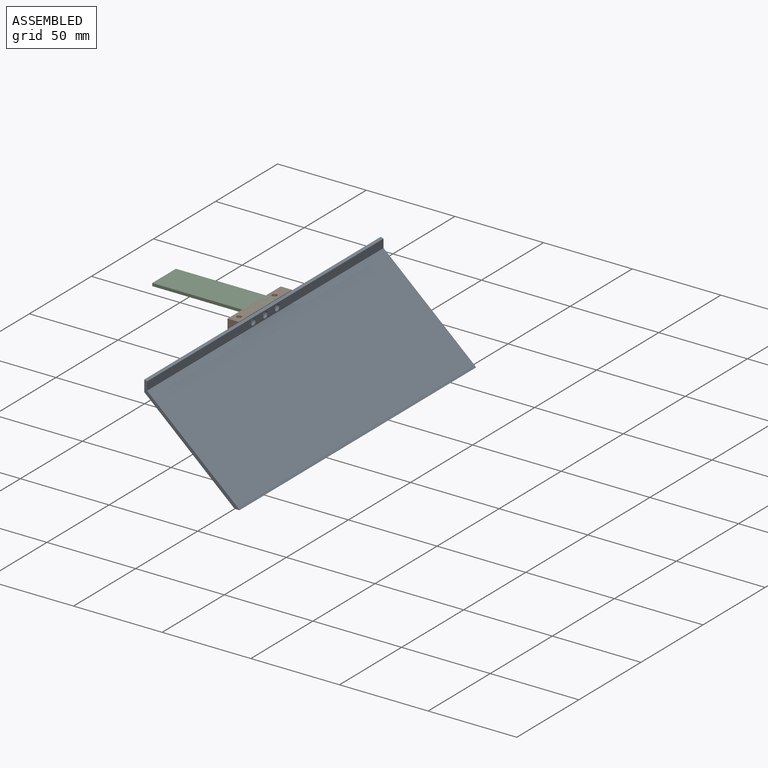
[diagram: assembled view]
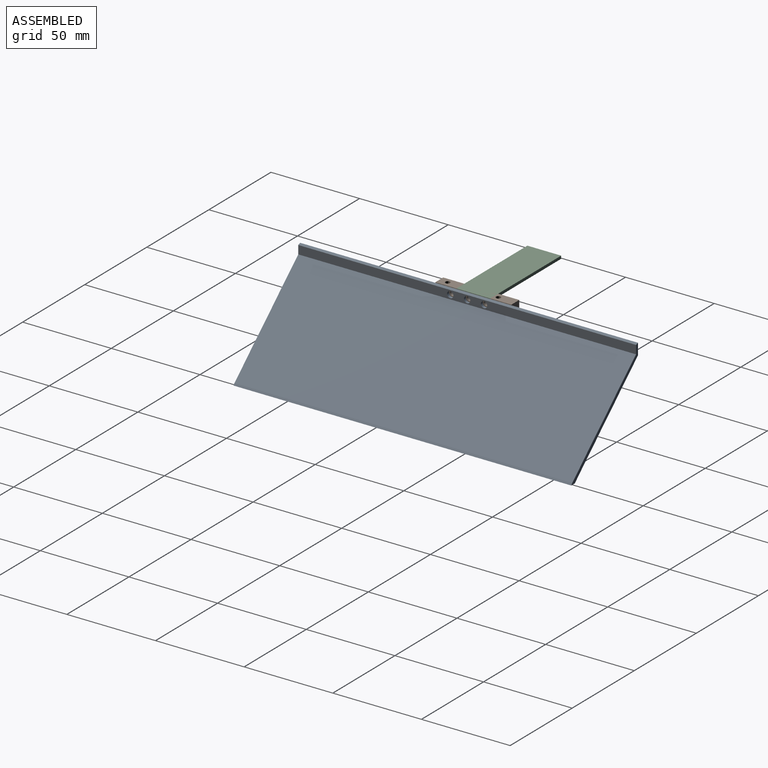
[diagram: assembled view, second angle]
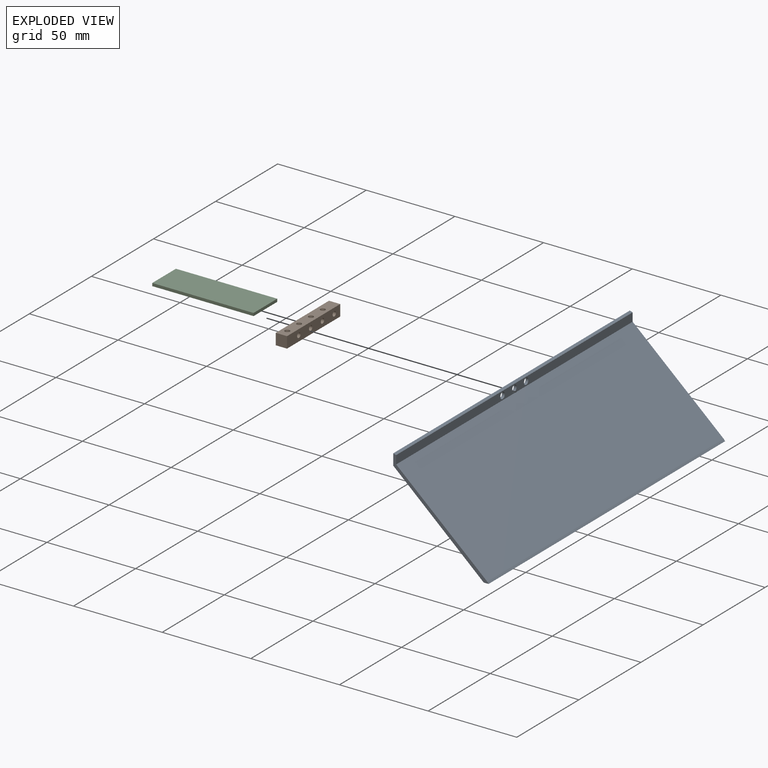
[diagram: exploded view]
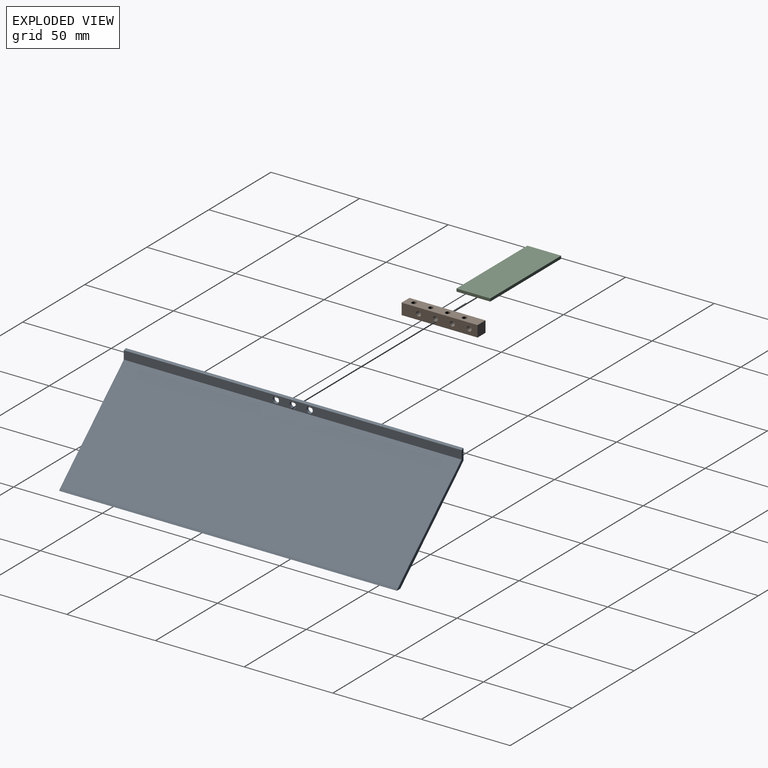
[diagram: exploded view, second angle]
ASSEMBLY  parts=3 mates=2
PART A: 12 faces, bbox 190.5x53.8x52.2 mm
  f0: plane 190.5x51.36mm, normal (0,-0.67,0.75), area 13129.8mm2, adj f1,f6,f7,f8
  f1: plane 190.5x1mm, normal (0,-0.78,0.62), area 243.7mm2, adj f0,f2,f7,f8
  f2: plane 190.5x2.8mm, normal (0,0,-1), area 532.6mm2, adj f1,f3,f7,f8
  f3: plane 190.5x50.96mm, normal (0,0.67,-0.74), area 13064.5mm2, adj f2,f4,f7,f8
  f4: plane 190.5x6.35mm, normal (0,1,0), area 1179.9mm2, adj f3,f5,f7,f8,f9,f10,f11
  f5: plane 190.5x1.6mm, normal (0,-0.3,0.95), area 319.4mm2, adj f4,f6,f7,f8
  f6: plane 190.5x4.78mm, normal (0,-1,0), area 880.7mm2, adj f0,f5,f7,f8,f9,f10,f11
  f7: plane 53.76x52.24mm, normal (1,0,0), area 145.8mm2, adj f0,f1,f2,f3,f4,f5,f6
  f8: plane 53.76x52.24mm, normal (-1,0,0), area 145.8mm2, adj f0,f1,f2,f3,f4,f5,f6
  f9: cylinder r=1.78mm len=3.56mm, axis (0,-1,0), area 17.9mm2, adj f4,f6
  f10: cylinder r=1.78mm len=3.56mm, axis (0,-1,0), area 17.9mm2, adj f4,f6
  f11: cylinder r=1.78mm len=3.56mm, axis (0,-1,0), area 17.9mm2, adj f4,f6
PART B: 14 faces, bbox 6.4x42.9x6.4 mm
  f0: revolved ~6.35x2.71mm, area 54mm2, adj f5,f7
  f1: revolved ~6.35x2.71mm, area 54mm2, adj f5,f7
  f2: revolved ~6.35x2.71mm, area 54mm2, adj f5,f7
  f3: revolved ~6.35x2.71mm, area 54mm2, adj f5,f7
  f4: plane 6.35x6.35mm, normal (0,-1,0), area 40.3mm2, adj f5,f7,f11,f12
  f5: plane 42.86x6.35mm, normal (0,0,-1), area 249.2mm2, adj f0,f1,f2,f3,f4,f6,f11,f12
  f6: plane 6.35x6.35mm, normal (0,1,0), area 40.3mm2, adj f5,f7,f11,f12
  f7: plane 42.86x6.35mm, normal (0,0,1), area 249.2mm2, adj f0,f1,f2,f3,f4,f6,f11,f12
  f8: revolved ~6.35x2.71mm, area 54mm2, adj f11,f12
  f9: revolved ~6.35x2.71mm, area 54mm2, adj f11,f12
  f10: revolved ~6.35x2.71mm, area 54mm2, adj f11,f12
  f11: plane 42.86x6.35mm, normal (-1,0,0), area 249.2mm2, adj f4,f5,f6,f7,f8,f9,f10,f13
  f12: plane 42.86x6.35mm, normal (1,0,0), area 249.2mm2, adj f4,f5,f6,f7,f8,f9,f10,f13
  f13: revolved ~6.35x2.71mm, area 54mm2, adj f11,f12
PART C: 6 faces, bbox 19.1x57.2x1.6 mm
  f0: plane 57.15x1.6mm, normal (-1,0,0), area 91.5mm2, adj f1,f3,f4,f5
  f1: plane 19.05x1.6mm, normal (0,-1,0), area 30.5mm2, adj f0,f2,f4,f5
  f2: plane 57.15x1.6mm, normal (1,0,0), area 91.5mm2, adj f1,f3,f4,f5
  f3: plane 19.05x1.6mm, normal (0,1,0), area 30.5mm2, adj f0,f2,f4,f5
  f4: plane 57.15x19.05mm, normal (0,0,1), area 1088.7mm2, adj f0,f1,f2,f3
  f5: plane 57.15x19.05mm, normal (0,0,-1), area 1088.7mm2, adj f0,f1,f2,f3
PLACE A rot(axis=(0,0,1),90deg) t=(52.36,-76.2,12.78)mm
PLACE B at identity
PLACE C rot(axis=(0,0,1),90deg) t=(-51.64,94.1,1.57)mm
MATE fastened C.f4 <-> B.f7  axis (0,0,1) through (3.18,21.43,3.18)mm
MATE fastened A.f9 <-> B.f12  axis (-1,0,0) through (3.18,19.05,0)mm
